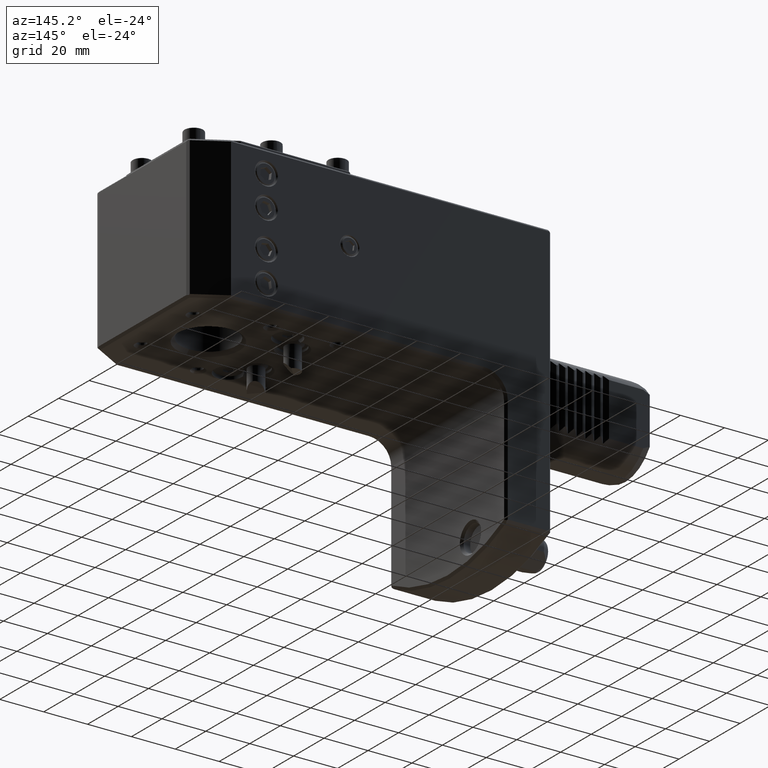
[diagram: clean part render]
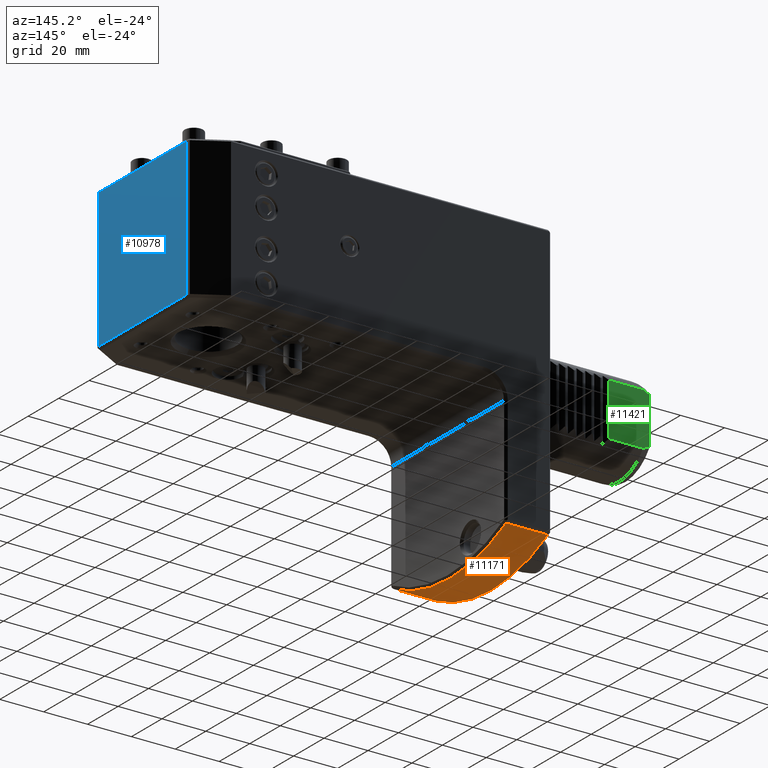
[diagram: same view with three faces highlighted in distinct colors, each labeled with its STEP entity id]
A machine part, auxiliary view with three faces highlighted in distinct colors.
Their STEP definitions:

[orange] entity #11171 — the highlighted cylindrical surface (partial cylindrical patch) has radius 79 mm, axis along (-1, -0, 0).
#289 = DIRECTION ( 'NONE',  ( 1.000000000000000000, 3.491481338843133355E-15, -2.282583637792314846E-32 ) ) ;
#663 = DIRECTION ( 'NONE',  ( -1.000000000000000000, -3.491481338843133355E-15, 2.282583637792279813E-32 ) ) ;
#1240 = EDGE_CURVE ( 'NONE', #11460, #11262, #11608, .T. ) ;
#1616 = CYLINDRICAL_SURFACE ( 'NONE', #5017, 79.00000000000000000 ) ;
#1666 = DIRECTION ( 'NONE',  ( 0.000000000000000000, 0.000000000000000000, -1.000000000000000000 ) ) ;
#1849 = VECTOR ( 'NONE', #10628, 1000.000000000000000 ) ;
#2528 = EDGE_CURVE ( 'NONE', #5362, #7760, #7668, .T. ) ;
#2722 = CARTESIAN_POINT ( 'NONE',  ( 160.0000000000000000, 5.586370142149013368E-13, -3.652133820467645249E-30 ) ) ;
#2767 = CARTESIAN_POINT ( 'NONE',  ( 20.00000000000000000, 6.982962677686266711E-14, -4.565167275584569699E-31 ) ) ;
#3087 = ORIENTED_EDGE ( 'NONE', *, *, #5643, .T. ) ;
#3354 = AXIS2_PLACEMENT_3D ( 'NONE', #2767, #12548, #1666 ) ;
#3891 = CARTESIAN_POINT ( 'NONE',  ( 1.000000000000128786, -36.91642872143154364, -69.84394956225959561 ) ) ;
#4395 = CIRCLE ( 'NONE', #3354, 79.00000000000000000 ) ;
#4409 = ORIENTED_EDGE ( 'NONE', *, *, #1240, .T. ) ;
#4502 = ORIENTED_EDGE ( 'NONE', *, *, #2528, .T. ) ;
#5017 = AXIS2_PLACEMENT_3D ( 'NONE', #2722, #5604, #6719 ) ;
#5079 = CARTESIAN_POINT ( 'NONE',  ( 20.00000000000012790, -36.91642872143147969, -69.84394956225959561 ) ) ;
#5325 = DIRECTION ( 'NONE',  ( 0.000000000000000000, 0.000000000000000000, 1.000000000000000000 ) ) ;
#5362 = VERTEX_POINT ( 'NONE', #5079 ) ;
#5457 = CARTESIAN_POINT ( 'NONE',  ( 19.99999999999987210, 36.91642872143166443, -69.84394956225959561 ) ) ;
#5582 = VECTOR ( 'NONE', #663, 1000.000000000000000 ) ;
#5604 = DIRECTION ( 'NONE',  ( -1.000000000000000000, -3.491481338843133355E-15, 2.282583637792279813E-32 ) ) ;
#5636 = CARTESIAN_POINT ( 'NONE',  ( 160.0000000000001421, -36.91642872143098231, -69.84394956225959561 ) ) ;
#5643 = EDGE_CURVE ( 'NONE', #7760, #11460, #5927, .T. ) ;
#5927 = CIRCLE ( 'NONE', #6558, 79.00000000000000000 ) ;
#6558 = AXIS2_PLACEMENT_3D ( 'NONE', #8201, #289, #5325 ) ;
#6719 = DIRECTION ( 'NONE',  ( 0.000000000000000000, 0.000000000000000000, 1.000000000000000000 ) ) ;
#7471 = ORIENTED_EDGE ( 'NONE', *, *, #11376, .T. ) ;
#7668 = LINE ( 'NONE', #5636, #5582 ) ;
#7760 = VERTEX_POINT ( 'NONE', #3891 ) ;
#7808 = CARTESIAN_POINT ( 'NONE',  ( 0.9999999999998712141, 36.91642872143160048, -69.84394956225959561 ) ) ;
#7908 = EDGE_LOOP ( 'NONE', ( #3087, #4409, #7471, #4502 ) ) ;
#8201 = CARTESIAN_POINT ( 'NONE',  ( 1.000000000000000000, 3.491481338843133355E-15, -2.282583637792315120E-32 ) ) ;
#10593 = FACE_OUTER_BOUND ( 'NONE', #7908, .T. ) ;
#10628 = DIRECTION ( 'NONE',  ( 1.000000000000000000, 3.491481338843133355E-15, -2.282583637792279813E-32 ) ) ;
#11171 = ADVANCED_FACE ( 'NONE', ( #10593 ), #1616, .T. ) ;
#11262 = VERTEX_POINT ( 'NONE', #5457 ) ;
#11376 = EDGE_CURVE ( 'NONE', #11262, #5362, #4395, .T. ) ;
#11460 = VERTEX_POINT ( 'NONE', #7808 ) ;
#11608 = LINE ( 'NONE', #12661, #1849 ) ;
#12548 = DIRECTION ( 'NONE',  ( -1.000000000000000000, -3.491481338843133355E-15, 2.282583637792239854E-32 ) ) ;
#12661 = CARTESIAN_POINT ( 'NONE',  ( 159.9999999999998579, 36.91642872143215470, -69.84394956225959561 ) ) ;

[blue] entity #10978 — the highlighted planar face has unit normal (1, 0, 0).
#494 = LINE ( 'NONE', #9602, #12714 ) ;
#616 = VECTOR ( 'NONE', #8248, 1000.000000000000000 ) ;
#1086 = CARTESIAN_POINT ( 'NONE',  ( 159.9999999999998863, 28.63397459621605989, -9.000000000000000000 ) ) ;
#1095 = DIRECTION ( 'NONE',  ( 1.000000000000000000, 3.491481338843133355E-15, 0.000000000000000000 ) ) ;
#1096 = CARTESIAN_POINT ( 'NONE',  ( 159.9999999999998863, 28.63397459621605989, 54.00000000000000000 ) ) ;
#1148 = CARTESIAN_POINT ( 'NONE',  ( 160.0000000000001421, -40.99999999999943867, -9.000000000000000000 ) ) ;
#1211 = DIRECTION ( 'NONE',  ( -3.491481338843133355E-15, 1.000000000000000000, 0.000000000000000000 ) ) ;
#1523 = LINE ( 'NONE', #10634, #5180 ) ;
#1667 = CARTESIAN_POINT ( 'NONE',  ( 160.0000000000001137, -28.63397459621499053, -9.000000000000000000 ) ) ;
#1970 = VERTEX_POINT ( 'NONE', #6316 ) ;
#2143 = CARTESIAN_POINT ( 'NONE',  ( 160.0000000000001421, -40.99999999999943867, -10.00000000000000000 ) ) ;
#2291 = CARTESIAN_POINT ( 'NONE',  ( 160.0000000000001137, -28.63397459621499053, -10.00000000000000000 ) ) ;
#2996 = VERTEX_POINT ( 'NONE', #1096 ) ;
#3463 = LINE ( 'NONE', #2291, #616 ) ;
#4365 = EDGE_CURVE ( 'NONE', #6741, #2996, #494, .T. ) ;
#4490 = DIRECTION ( 'NONE',  ( -3.899395593725499015E-31, 1.116831286005820049E-16, 1.000000000000000000 ) ) ;
#5015 = ORIENTED_EDGE ( 'NONE', *, *, #10043, .T. ) ;
#5180 = VECTOR ( 'NONE', #5510, 1000.000000000000000 ) ;
#5510 = DIRECTION ( 'NONE',  ( 3.491481338843133355E-15, -1.000000000000000000, 0.000000000000000000 ) ) ;
#5601 = ORIENTED_EDGE ( 'NONE', *, *, #10750, .T. ) ;
#6139 = DIRECTION ( 'NONE',  ( -0.000000000000000000, 0.000000000000000000, -1.000000000000000000 ) ) ;
#6265 = AXIS2_PLACEMENT_3D ( 'NONE', #2143, #1095, #6139 ) ;
#6316 = CARTESIAN_POINT ( 'NONE',  ( 160.0000000000001137, -28.63397459621499053, 54.00000000000000000 ) ) ;
#6741 = VERTEX_POINT ( 'NONE', #1086 ) ;
#7874 = ORIENTED_EDGE ( 'NONE', *, *, #4365, .T. ) ;
#7978 = VERTEX_POINT ( 'NONE', #1667 ) ;
#8121 = VECTOR ( 'NONE', #1211, 1000.000000000000000 ) ;
#8248 = DIRECTION ( 'NONE',  ( -3.899395593725499015E-31, 1.116831286005820049E-16, -1.000000000000000000 ) ) ;
#8902 = LINE ( 'NONE', #1148, #8121 ) ;
#9545 = EDGE_CURVE ( 'NONE', #2996, #1970, #1523, .T. ) ;
#9602 = CARTESIAN_POINT ( 'NONE',  ( 159.9999999999998863, 28.63397459621600660, -10.00000000000000000 ) ) ;
#10012 = FACE_OUTER_BOUND ( 'NONE', #11272, .T. ) ;
#10043 = EDGE_CURVE ( 'NONE', #7978, #6741, #8902, .T. ) ;
#10634 = CARTESIAN_POINT ( 'NONE',  ( 160.0000000000001421, -40.99999999999943867, 54.00000000000000000 ) ) ;
#10750 = EDGE_CURVE ( 'NONE', #1970, #7978, #3463, .T. ) ;
#10978 = ADVANCED_FACE ( 'NONE', ( #10012 ), #11124, .T. ) ;
#11124 = PLANE ( 'NONE',  #6265 ) ;
#11272 = EDGE_LOOP ( 'NONE', ( #12103, #5601, #5015, #7874 ) ) ;
#12103 = ORIENTED_EDGE ( 'NONE', *, *, #9545, .T. ) ;
#12714 = VECTOR ( 'NONE', #4490, 1000.000000000000000 ) ;

[green] entity #11421 — the highlighted planar face has unit normal (-0, -1, 0).
#131 = DIRECTION ( 'NONE',  ( -4.565167275584559627E-32, -1.587584192864309767E-46, -1.000000000000000000 ) ) ;
#266 = CARTESIAN_POINT ( 'NONE',  ( -60.00000000000005684, 15.99999999999979217, -10.60623721381831963 ) ) ;
#268 = EDGE_CURVE ( 'NONE', #2744, #12473, #10525, .T. ) ;
#721 = EDGE_CURVE ( 'NONE', #8675, #2553, #12477, .T. ) ;
#821 = CARTESIAN_POINT ( 'NONE',  ( -60.00000000000005684, 15.99999999999979217, -10.60623721381831963 ) ) ;
#985 = EDGE_LOOP ( 'NONE', ( #10490, #4446, #3033, #10296, #5955, #5884 ) ) ;
#1532 = VECTOR ( 'NONE', #6315, 1000.000000000000000 ) ;
#2152 = CARTESIAN_POINT ( 'NONE',  ( -58.00755840312150013, 15.99999999999988987, 11.55004256592730449 ) ) ;
#2553 = VERTEX_POINT ( 'NONE', #11798 ) ;
#2579 = DIRECTION ( 'NONE',  ( -2.104400841727217149E-15, -1.000000000000000000, 2.548278378600879917E-46 ) ) ;
#2677 = VECTOR ( 'NONE', #4486, 1000.000000000000000 ) ;
#2744 = VERTEX_POINT ( 'NONE', #11207 ) ;
#2933 = AXIS2_PLACEMENT_3D ( 'NONE', #11560, #2579, #6576 ) ;
#3033 = ORIENTED_EDGE ( 'NONE', *, *, #721, .T. ) ;
#3244 = CARTESIAN_POINT ( 'NONE',  ( -60.00000000000005684, 15.99999999999979217, -11.99999999999987921 ) ) ;
#3796 = EDGE_CURVE ( 'NONE', #2553, #2744, #8831, .T. ) ;
#3803 = VECTOR ( 'NONE', #4367, 1000.000000000000000 ) ;
#3905 = EDGE_CURVE ( 'NONE', #12473, #11234, #4313, .T. ) ;
#3991 = CARTESIAN_POINT ( 'NONE',  ( -60.00000000000005684, 15.99999999999979217, 10.60623721381829832 ) ) ;
#4313 = LINE ( 'NONE', #8306, #9768 ) ;
#4367 = DIRECTION ( 'NONE',  ( 1.000000000000000000, 3.379567949260731805E-15, -4.565167275584559627E-32 ) ) ;
#4446 = ORIENTED_EDGE ( 'NONE', *, *, #10742, .T. ) ;
#4486 = DIRECTION ( 'NONE',  ( -1.000000000000000000, -3.379567949260731805E-15, 4.565167275584559627E-32 ) ) ;
#5300 = CARTESIAN_POINT ( 'NONE',  ( -59.00759498940841752, 15.99999999999988987, -11.08751326847280616 ) ) ;
#5344 = VERTEX_POINT ( 'NONE', #10686 ) ;
#5355 = CARTESIAN_POINT ( 'NONE',  ( -57.00000000000005684, 15.99999999999980282, 12.00000000000000000 ) ) ;
#5461 = LINE ( 'NONE', #3244, #2677 ) ;
#5522 = PLANE ( 'NONE',  #2933 ) ;
#5884 = ORIENTED_EDGE ( 'NONE', *, *, #3905, .T. ) ;
#5955 = ORIENTED_EDGE ( 'NONE', *, *, #268, .T. ) ;
#6315 = DIRECTION ( 'NONE',  ( 4.565167275584559627E-32, 1.587584192864309767E-46, 1.000000000000000000 ) ) ;
#6480 = CARTESIAN_POINT ( 'NONE',  ( -58.00681029559114421, 15.99999999999988987, -11.55037665727499707 ) ) ;
#6576 = DIRECTION ( 'NONE',  ( -1.000000000000000000, 2.104400841727217149E-15, 4.565167275584559627E-32 ) ) ;
#7423 = CARTESIAN_POINT ( 'NONE',  ( -41.40000000000005542, 15.99999999999985434, -12.00000000000000000 ) ) ;
#7980 = CARTESIAN_POINT ( 'NONE',  ( -59.00917983487012464, 15.99999999999988987, 11.08674468290248250 ) ) ;
#8306 = CARTESIAN_POINT ( 'NONE',  ( -41.40000000000005542, 15.99999999999985434, 36.00000000000000000 ) ) ;
#8634 = B_SPLINE_CURVE_WITH_KNOTS ( 'NONE', 3,
 ( #11273, #6480, #5300, #266 ),
 .UNSPECIFIED., .F., .F.,
 ( 4, 4 ),
 ( 0.02571943523653990801, 0.02902637181044525477 ),
 .UNSPECIFIED. ) ;
#8675 = VERTEX_POINT ( 'NONE', #821 ) ;
#8831 = B_SPLINE_CURVE_WITH_KNOTS ( 'NONE', 3,
 ( #3991, #7980, #2152, #5355 ),
 .UNSPECIFIED., .F., .F.,
 ( 4, 4 ),
 ( 0.06239050044300152587, 0.06573559711957835394 ),
 .UNSPECIFIED. ) ;
#8925 = EDGE_CURVE ( 'NONE', #11234, #5344, #5461, .T. ) ;
#9267 = CARTESIAN_POINT ( 'NONE',  ( -41.40000000000005542, 15.99999999999985434, 12.00000000000000000 ) ) ;
#9534 = CARTESIAN_POINT ( 'NONE',  ( -60.00000000000005684, 15.99999999999979217, 11.99999999999985967 ) ) ;
#9768 = VECTOR ( 'NONE', #131, 1000.000000000000000 ) ;
#10296 = ORIENTED_EDGE ( 'NONE', *, *, #3796, .T. ) ;
#10490 = ORIENTED_EDGE ( 'NONE', *, *, #8925, .T. ) ;
#10525 = LINE ( 'NONE', #9534, #3803 ) ;
#10686 = CARTESIAN_POINT ( 'NONE',  ( -57.00000000000005684, 15.99999999999980282, -12.00000000000000000 ) ) ;
#10742 = EDGE_CURVE ( 'NONE', #5344, #8675, #8634, .T. ) ;
#11207 = CARTESIAN_POINT ( 'NONE',  ( -57.00000000000005684, 15.99999999999980282, 12.00000000000000000 ) ) ;
#11234 = VERTEX_POINT ( 'NONE', #7423 ) ;
#11273 = CARTESIAN_POINT ( 'NONE',  ( -57.00000000000005684, 15.99999999999980282, -12.00000000000000000 ) ) ;
#11421 = ADVANCED_FACE ( 'NONE', ( #12480 ), #5522, .F. ) ;
#11492 = CARTESIAN_POINT ( 'NONE',  ( -60.00000000000005684, 15.99999999999979217, -3.469446951953574746E-15 ) ) ;
#11560 = CARTESIAN_POINT ( 'NONE',  ( -41.40000000000005542, 15.99999999999985434, 36.00000000000000000 ) ) ;
#11798 = CARTESIAN_POINT ( 'NONE',  ( -60.00000000000005684, 15.99999999999979217, 10.60623721381829832 ) ) ;
#12473 = VERTEX_POINT ( 'NONE', #9267 ) ;
#12477 = LINE ( 'NONE', #11492, #1532 ) ;
#12480 = FACE_OUTER_BOUND ( 'NONE', #985, .T. ) ;